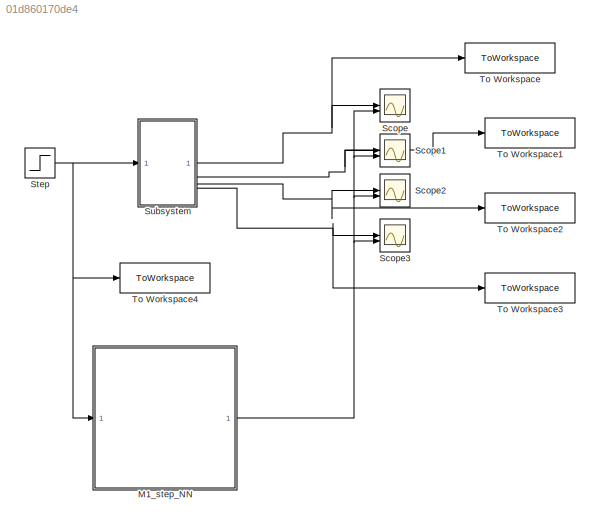
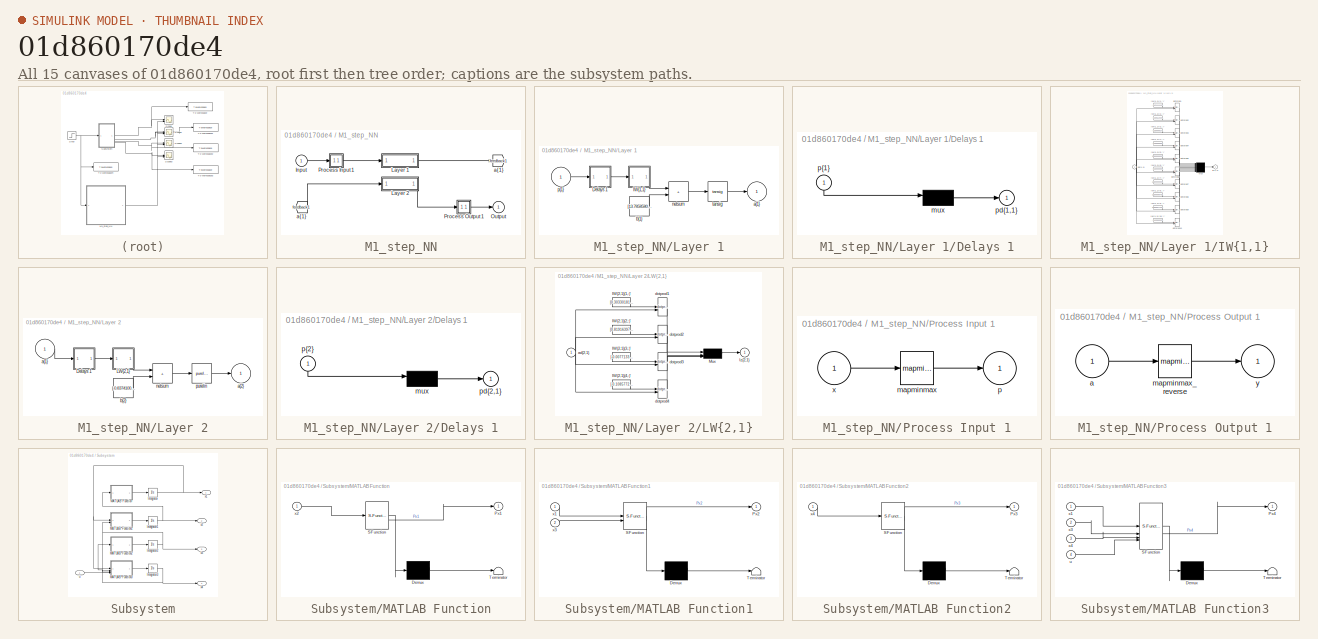
[diagram: thumbnail index - all 15 canvases of the model, root first then tree order]
MODEL slx_01d860170de4
KIND model
CONFIG AbsTol = auto
CONFIG EnableMultiTasking = off
CONFIG FixedStep = auto
CONFIG MaxStep = auto
CONFIG MinStep = auto
CONFIG RelTol = 1e-3
CONFIG SampleTimeConstraint = Unconstrained
CONFIG SolverName = VariableStepAuto
CONFIG StartTime = 0.0
CONFIG StopTime = 10.0
BLOCK [SubSystem] M1_step_NN
BLOCK [From] M1_step_NN/ a{1} 
  GotoTag = feedback1
BLOCK [Inport] M1_step_NN/Input
  PortDimensions = 1
BLOCK [SubSystem] M1_step_NN/Layer 1
BLOCK [SubSystem] M1_step_NN/Layer 1/Delays 1
BLOCK [Mux] M1_step_NN/Layer 1/Delays 1/mux
  Inputs = 1
BLOCK [Outport] M1_step_NN/Layer 1/Delays 1/pd{1,1}
BLOCK [Inport] M1_step_NN/Layer 1/Delays 1/p{1}
  NameLocation = left
  PortDimensions = 1
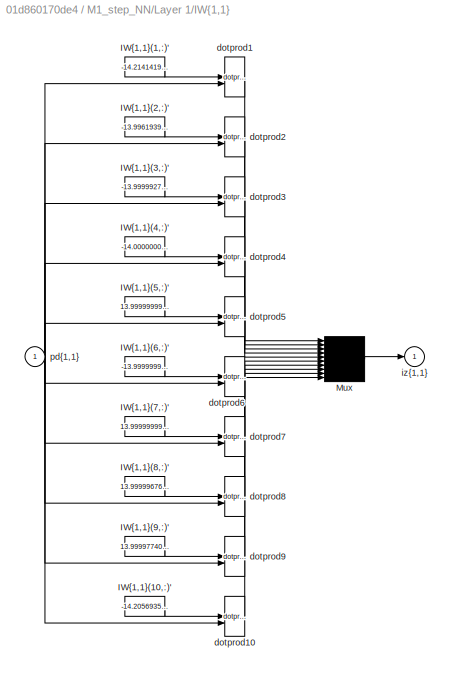
BLOCK [SubSystem] M1_step_NN/Layer 1/IW{1,1}
BLOCK [Constant] M1_step_NN/Layer 1/IW{1,1}/IW{1,1}(1,:)'
  Value = -14.21414191420696937484535737894475460052490234375
BLOCK [Constant] M1_step_NN/Layer 1/IW{1,1}/IW{1,1}(10,:)'
  Value = -14.2056935620228959038513494306243956089019775390625
BLOCK [Constant] M1_step_NN/Layer 1/IW{1,1}/IW{1,1}(2,:)'
  Value = -13.9961939558479055989437256357632577419281005859375
BLOCK [Constant] M1_step_NN/Layer 1/IW{1,1}/IW{1,1}(3,:)'
  Value = -13.9999927439953868457678254344500601291656494140625
BLOCK [Constant] M1_step_NN/Layer 1/IW{1,1}/IW{1,1}(4,:)'
  Value = -14.000000001546734296198337688110768795013427734375
BLOCK [Constant] M1_step_NN/Layer 1/IW{1,1}/IW{1,1}(5,:)'
  Value = 13.99999999997024957565372460521757602691650390625
BLOCK [Constant] M1_step_NN/Layer 1/IW{1,1}/IW{1,1}(6,:)'
  Value = -13.99999999998562572045557317323982715606689453125
BLOCK [Constant] M1_step_NN/Layer 1/IW{1,1}/IW{1,1}(7,:)'
  Value = 13.9999999911144303865739857428707182407379150390625
BLOCK [Constant] M1_step_NN/Layer 1/IW{1,1}/IW{1,1}(8,:)'
  Value = 13.999996769002695629069421556778252124786376953125
BLOCK [Constant] M1_step_NN/Layer 1/IW{1,1}/IW{1,1}(9,:)'
  Value = 13.9999774026981587127238526591099798679351806640625
BLOCK [Mux] M1_step_NN/Layer 1/IW{1,1}/Mux
  Inputs = 10
BLOCK [Reference] M1_step_NN/Layer 1/IW{1,1}/dotprod1  REF=neural/Weight Functions/dotprod
  SourceBlock = neural/Weight Functions/dotprod
  SourceType = DOTPROD
BLOCK [Reference] M1_step_NN/Layer 1/IW{1,1}/dotprod10  REF=neural/Weight Functions/dotprod
  SourceBlock = neural/Weight Functions/dotprod
  SourceType = DOTPROD
BLOCK [Reference] M1_step_NN/Layer 1/IW{1,1}/dotprod2  REF=neural/Weight Functions/dotprod
  SourceBlock = neural/Weight Functions/dotprod
  SourceType = DOTPROD
BLOCK [Reference] M1_step_NN/Layer 1/IW{1,1}/dotprod3  REF=neural/Weight Functions/dotprod
  SourceBlock = neural/Weight Functions/dotprod
  SourceType = DOTPROD
BLOCK [Reference] M1_step_NN/Layer 1/IW{1,1}/dotprod4  REF=neural/Weight Functions/dotprod
  SourceBlock = neural/Weight Functions/dotprod
  SourceType = DOTPROD
BLOCK [Reference] M1_step_NN/Layer 1/IW{1,1}/dotprod5  REF=neural/Weight Functions/dotprod
  SourceBlock = neural/Weight Functions/dotprod
  SourceType = DOTPROD
BLOCK [Reference] M1_step_NN/Layer 1/IW{1,1}/dotprod6  REF=neural/Weight Functions/dotprod
  SourceBlock = neural/Weight Functions/dotprod
  SourceType = DOTPROD
BLOCK [Reference] M1_step_NN/Layer 1/IW{1,1}/dotprod7  REF=neural/Weight Functions/dotprod
  SourceBlock = neural/Weight Functions/dotprod
  SourceType = DOTPROD
BLOCK [Reference] M1_step_NN/Layer 1/IW{1,1}/dotprod8  REF=neural/Weight Functions/dotprod
  SourceBlock = neural/Weight Functions/dotprod
  SourceType = DOTPROD
BLOCK [Reference] M1_step_NN/Layer 1/IW{1,1}/dotprod9  REF=neural/Weight Functions/dotprod
  SourceBlock = neural/Weight Functions/dotprod
  SourceType = DOTPROD
BLOCK [Outport] M1_step_NN/Layer 1/IW{1,1}/iz{1,1}
BLOCK [Inport] M1_step_NN/Layer 1/IW{1,1}/pd{1,1}
  PortDimensions = 1
BLOCK [Outport] M1_step_NN/Layer 1/a{1}
  InitialOutput = [0;0;0;0;0;0;0;0;0;0]
BLOCK [Constant] M1_step_NN/Layer 1/b{1}
  Value = [13.7858580857930395069388396223075687885284423828125;10.892694933040981908334288164041936397552490234375;7.77778503378239083332346126553602516651153564453125;4.66666666511993089017096281168051064014434814453125;-1.5555555555853957105938434324343688786029815673828125;-1.55555555556997671118324433336965739727020263671875;4.6666666755522356879737344570457935333251953125;7.777781008775081161843445443...<+128ch>
BLOCK [Sum] M1_step_NN/Layer 1/netsum
  IconShape = rectangular
  InputSameDT = on
  Inputs = 2
  OutDataTypeStr = Inherit: Same as first input
  SaturateOnIntegerOverflow = on
BLOCK [Inport] M1_step_NN/Layer 1/p{1}
  PortDimensions = 1
BLOCK [Reference] M1_step_NN/Layer 1/tansig  REF=neural/Transfer Functions/tansig
  SourceBlock = neural/Transfer Functions/tansig
  SourceType = TANSIG
BLOCK [SubSystem] M1_step_NN/Layer 2
BLOCK [SubSystem] M1_step_NN/Layer 2/Delays 1
BLOCK [Mux] M1_step_NN/Layer 2/Delays 1/mux
  Inputs = 1
BLOCK [Outport] M1_step_NN/Layer 2/Delays 1/pd{2,1}
BLOCK [Inport] M1_step_NN/Layer 2/Delays 1/p{2}
  NameLocation = left
  PortDimensions = 10
BLOCK [SubSystem] M1_step_NN/Layer 2/LW{2,1}
BLOCK [Constant] M1_step_NN/Layer 2/LW{2,1}/IW{2,1}(1,:)'
  Value = [0.30330181915573317663614716366282664239406585693359375;0.96065110160235700487163512661936692893505096435546875;-0.26113735930578696464721133452258072793483734130859375;-0.72024607665349671403731690588756464421749114990234375;0.221778972204675517421179620214388705790042877197265625;0.06456288770342592797657488290496985428035259246826171875;0.6846244054302503823095094048767350614070892333984375;-0...<+168ch>
BLOCK [Constant] M1_step_NN/Layer 2/LW{2,1}/IW{2,1}(2,:)'
  Value = [0.819163970289384035794455485302023589611053466796875;-0.8581476975587942757073278698953799903392791748046875;-0.31259618591607696291845286395982839167118072509765625;-0.266659433580335669677907617369783110916614532470703125;0.0971611530046038451846612815643311478197574615478515625;-0.86674952398806082154436580822221003472805023193359375;-0.5769656482913438910742343068704940378665924072265625;-0....<+165ch>
BLOCK [Constant] M1_step_NN/Layer 2/LW{2,1}/IW{2,1}(3,:)'
  Value = [-0.007713334971200085272979851680474894237704575061798095703125;-0.37253438847314190862647365065640769898891448974609375;-0.7829016744234318370132541531347669661045074462890625;0.77023392824568126524553690614993683993816375732421875;0.42123370864381026734690749435685575008392333984375;0.62955879028910366468352322044665925204753875732421875;0.1877083585687728817248398627270944416522979736328125;-0...<+166ch>
BLOCK [Constant] M1_step_NN/Layer 2/LW{2,1}/IW{2,1}(4,:)'
  Value = [-0.1085772726797044895885591131445835344493389129638671875;0.8280699763514334232894498200039379298686981201171875;0.7116699417740399713494525713031180202960968017578125;-0.12056768891315612635128928786798496730625629425048828125;-0.82147006238449737924867122274008579552173614501953125;-0.4398928391688006200865856953896582126617431640625;0.99521901591091133099098442471586167812347412109375;0.48282...<+159ch>
BLOCK [Mux] M1_step_NN/Layer 2/LW{2,1}/Mux
BLOCK [Inport] M1_step_NN/Layer 2/LW{2,1}/ad{2,1}
  PortDimensions = 10
BLOCK [Reference] M1_step_NN/Layer 2/LW{2,1}/dotprod1  REF=neural/Weight Functions/dotprod
  SourceBlock = neural/Weight Functions/dotprod
  SourceType = DOTPROD
BLOCK [Reference] M1_step_NN/Layer 2/LW{2,1}/dotprod2  REF=neural/Weight Functions/dotprod
  SourceBlock = neural/Weight Functions/dotprod
  SourceType = DOTPROD
BLOCK [Reference] M1_step_NN/Layer 2/LW{2,1}/dotprod3  REF=neural/Weight Functions/dotprod
  SourceBlock = neural/Weight Functions/dotprod
  SourceType = DOTPROD
BLOCK [Reference] M1_step_NN/Layer 2/LW{2,1}/dotprod4  REF=neural/Weight Functions/dotprod
  SourceBlock = neural/Weight Functions/dotprod
  SourceType = DOTPROD
BLOCK [Outport] M1_step_NN/Layer 2/LW{2,1}/lz{2,1}
BLOCK [Inport] M1_step_NN/Layer 2/a{1} 
  PortDimensions = 10
BLOCK [Outport] M1_step_NN/Layer 2/a{2}
  InitialOutput = [0;0;0;0]
BLOCK [Constant] M1_step_NN/Layer 2/b{2}
  Value = [-0.83741003081472442648447440660675056278705596923828125;-0.50767235521419451504954167830874212086200714111328125;-0.6867347856186711840820180441369302570819854736328125;0.05075557787429361977782349413246265612542629241943359375]
BLOCK [Sum] M1_step_NN/Layer 2/netsum
  IconShape = rectangular
  InputSameDT = on
  Inputs = 2
  OutDataTypeStr = Inherit: Same as first input
  SaturateOnIntegerOverflow = on
BLOCK [Reference] M1_step_NN/Layer 2/purelin  REF=neural/Transfer Functions/purelin
  SourceBlock = neural/Transfer Functions/purelin
  SourceType = PURELIN
BLOCK [Outport] M1_step_NN/Output
  InitialOutput = [0;0;0;0]
BLOCK [SubSystem] M1_step_NN/Process Input 1
BLOCK [Reference] M1_step_NN/Process Input 1/mapminmax  REF=neural/Processing Functions/mapminmax
  SourceBlock = neural/Processing Functions/mapminmax
  SourceType = MAPMINMAX Preprocess
BLOCK [Outport] M1_step_NN/Process Input 1/p
  PortDimensions = 1
BLOCK [Inport] M1_step_NN/Process Input 1/x
  PortDimensions = 1
BLOCK [SubSystem] M1_step_NN/Process Output 1
BLOCK [Inport] M1_step_NN/Process Output 1/a
  PortDimensions = 4
BLOCK [Reference] M1_step_NN/Process Output 1/mapminmax_reverse  REF=neural/Processing Functions/mapminmax_reverse
  SourceBlock = neural/Processing Functions/mapminmax_reverse
  SourceType = MAPMINMAX Reverse Process
BLOCK [Outport] M1_step_NN/Process Output 1/y
  PortDimensions = 4
BLOCK [Goto] M1_step_NN/a{1}
  GotoTag = feedback1
BLOCK [Scope] Scope
  Floating = off
  NumInputPorts = 2
  ScopeSpecificationString = Simulink.scopes.TimeScopeBlockCfg('CurrentConfiguration', extmgr.ConfigurationSet(extmgr.Configuration('Core','General UI',true),extmgr.Configuration('Core','Source UI',true),extmgr.Configuration('Sources','WiredSimulink',true,'DataLoggingVariableName','ScopeData1'),extmgr.Configuration('Visuals','Time Domain',true,'SerializedDisplays',{struct('MinYLimReal','-0.04923','MaxYLimReal','0.44295','YLab...<+1430ch>
BLOCK [Scope] Scope1
  Floating = off
  NumInputPorts = 2
  ScopeSpecificationString = Simulink.scopes.TimeScopeBlockCfg('CurrentConfiguration', extmgr.ConfigurationSet(extmgr.Configuration('Core','General UI',true),extmgr.Configuration('Core','Source UI',true),extmgr.Configuration('Sources','WiredSimulink',true,'DataLoggingVariableName','ScopeData2'),extmgr.Configuration('Visuals','Time Domain',true,'SerializedDisplays',{struct('MinYLimReal','-0.48583','MaxYLimReal','0.51623','YLab...<+1430ch>
BLOCK [Scope] Scope2
  Floating = off
  NumInputPorts = 2
  ScopeSpecificationString = Simulink.scopes.TimeScopeBlockCfg('CurrentConfiguration', extmgr.ConfigurationSet(extmgr.Configuration('Core','General UI',true),extmgr.Configuration('Core','Source UI',true),extmgr.Configuration('Sources','WiredSimulink',true,'DataLoggingVariableName','ScopeData3'),extmgr.Configuration('Visuals','Time Domain',true,'SerializedDisplays',{struct('MinYLimReal','-0.05131','MaxYLimReal','0.46166','YLab...<+1458ch>
BLOCK [Scope] Scope3
  Floating = off
  NumInputPorts = 2
  ScopeSpecificationString = Simulink.scopes.TimeScopeBlockCfg('CurrentConfiguration', extmgr.ConfigurationSet(extmgr.Configuration('Core','General UI',true),extmgr.Configuration('Core','Source UI',true),extmgr.Configuration('Sources','WiredSimulink',true),extmgr.Configuration('Visuals','Time Domain',true,'SerializedDisplays',{struct('MinYLimReal','-0.55035','MaxYLimReal','0.58696','YLabelReal','','MinYLimMag','0.00000','MaxY...<+1423ch>
BLOCK [Step] Step
  SampleTime = 0
BLOCK [SubSystem] Subsystem
BLOCK [Integrator] Subsystem/Integrator
BLOCK [Integrator] Subsystem/Integrator1
BLOCK [Integrator] Subsystem/Integrator2
BLOCK [Integrator] Subsystem/Integrator3
BLOCK [SubSystem] Subsystem/MATLAB Function
  ErrorFcn = Stateflow.Translate.translate
  LibrarySourceBlock = simulink/User-Defined\nFunctions/MATLAB Function
  PermitHierarchicalResolution = ExplicitOnly
  SFBlockType = MATLAB Function
  TreatAsAtomicUnit = on
BLOCK [Demux] Subsystem/MATLAB Function/ Demux 
  Outputs = 1
BLOCK [S-Function] Subsystem/MATLAB Function/ SFunction 
  EnableBusSupport = on
  FunctionName = sf_sfun
  PortCounts = [1 2]
  SFcnIsStateOwnerBlock = off
  SFunctionDeploymentMode = off
  Tag = Stateflow S-Function 2
BLOCK [Terminator] Subsystem/MATLAB Function/ Terminator 
BLOCK [Outport] Subsystem/MATLAB Function/Px1
BLOCK [Inport] Subsystem/MATLAB Function/x2
BLOCK [SubSystem] Subsystem/MATLAB Function1
  ErrorFcn = Stateflow.Translate.translate
  LibrarySourceBlock = simulink/User-Defined\nFunctions/MATLAB Function
  PermitHierarchicalResolution = ExplicitOnly
  SFBlockType = MATLAB Function
  TreatAsAtomicUnit = on
BLOCK [Demux] Subsystem/MATLAB Function1/ Demux 
  Outputs = 1
BLOCK [S-Function] Subsystem/MATLAB Function1/ SFunction 
  EnableBusSupport = on
  FunctionName = sf_sfun
  PortCounts = [2 2]
  SFcnIsStateOwnerBlock = off
  SFunctionDeploymentMode = off
  Tag = Stateflow S-Function 1
BLOCK [Terminator] Subsystem/MATLAB Function1/ Terminator 
BLOCK [Outport] Subsystem/MATLAB Function1/Px2
BLOCK [Inport] Subsystem/MATLAB Function1/x1
BLOCK [Inport] Subsystem/MATLAB Function1/x3
  Port = 2
BLOCK [SubSystem] Subsystem/MATLAB Function2
  ErrorFcn = Stateflow.Translate.translate
  LibrarySourceBlock = simulink/User-Defined\nFunctions/MATLAB Function
  PermitHierarchicalResolution = ExplicitOnly
  SFBlockType = MATLAB Function
  TreatAsAtomicUnit = on
BLOCK [Demux] Subsystem/MATLAB Function2/ Demux 
  Outputs = 1
BLOCK [S-Function] Subsystem/MATLAB Function2/ SFunction 
  EnableBusSupport = on
  FunctionName = sf_sfun
  PortCounts = [1 2]
  SFcnIsStateOwnerBlock = off
  SFunctionDeploymentMode = off
  Tag = Stateflow S-Function 3
BLOCK [Terminator] Subsystem/MATLAB Function2/ Terminator 
BLOCK [Outport] Subsystem/MATLAB Function2/Px3
BLOCK [Inport] Subsystem/MATLAB Function2/x4
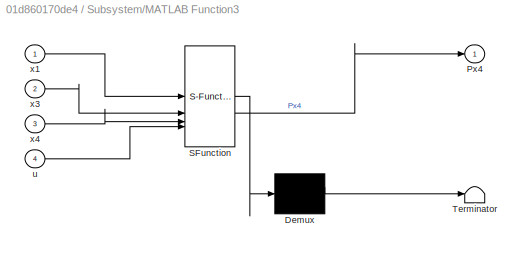
BLOCK [SubSystem] Subsystem/MATLAB Function3
  ErrorFcn = Stateflow.Translate.translate
  LibrarySourceBlock = simulink/User-Defined\nFunctions/MATLAB Function
  PermitHierarchicalResolution = ExplicitOnly
  SFBlockType = MATLAB Function
  TreatAsAtomicUnit = on
BLOCK [Demux] Subsystem/MATLAB Function3/ Demux 
  Outputs = 1
BLOCK [S-Function] Subsystem/MATLAB Function3/ SFunction 
  EnableBusSupport = on
  FunctionName = sf_sfun
  PortCounts = [4 2]
  SFcnIsStateOwnerBlock = off
  SFunctionDeploymentMode = off
  Tag = Stateflow S-Function 4
BLOCK [Terminator] Subsystem/MATLAB Function3/ Terminator 
BLOCK [Outport] Subsystem/MATLAB Function3/Px4
BLOCK [Inport] Subsystem/MATLAB Function3/u
  Port = 4
BLOCK [Inport] Subsystem/MATLAB Function3/x1
BLOCK [Inport] Subsystem/MATLAB Function3/x3
  Port = 2
BLOCK [Inport] Subsystem/MATLAB Function3/x4
  Port = 3
BLOCK [Inport] Subsystem/u
BLOCK [Outport] Subsystem/x1
BLOCK [Outport] Subsystem/x2
  Port = 2
BLOCK [Outport] Subsystem/x3
  Port = 3
BLOCK [Outport] Subsystem/x4
  Port = 4
BLOCK [ToWorkspace] To Workspace
  FixptAsFi = on
  MaxDataPoints = inf
  SampleTime = -1
  SaveFormat = Structure With Time
  VariableName = x1
BLOCK [ToWorkspace] To Workspace1
  FixptAsFi = on
  MaxDataPoints = inf
  SampleTime = -1
  SaveFormat = Structure With Time
  VariableName = x2
BLOCK [ToWorkspace] To Workspace2
  FixptAsFi = on
  MaxDataPoints = inf
  SampleTime = -1
  SaveFormat = Structure With Time
  VariableName = x3
BLOCK [ToWorkspace] To Workspace3
  FixptAsFi = on
  MaxDataPoints = inf
  SampleTime = -1
  SaveFormat = Structure With Time
  VariableName = x4
BLOCK [ToWorkspace] To Workspace4
  FixptAsFi = on
  MaxDataPoints = inf
  SampleTime = -1
  SaveFormat = Structure With Time
  VariableName = u
LINE M1_step_NN/ a{1} :1 -> M1_step_NN/Layer 2:1
LINE M1_step_NN/Input:1 -> M1_step_NN/Process Input 1:1
LINE M1_step_NN/Layer 1/Delays 1/mux:1 -> M1_step_NN/Layer 1/Delays 1/pd{1,1}:1
LINE M1_step_NN/Layer 1/Delays 1/p{1}:1 -> M1_step_NN/Layer 1/Delays 1/mux:1
LINE M1_step_NN/Layer 1/Delays 1:1 -> M1_step_NN/Layer 1/IW{1,1}:1
LINE M1_step_NN/Layer 1/IW{1,1}/IW{1,1}(1,:)':1 -> M1_step_NN/Layer 1/IW{1,1}/dotprod1:1
LINE M1_step_NN/Layer 1/IW{1,1}/IW{1,1}(10,:)':1 -> M1_step_NN/Layer 1/IW{1,1}/dotprod10:1
LINE M1_step_NN/Layer 1/IW{1,1}/IW{1,1}(2,:)':1 -> M1_step_NN/Layer 1/IW{1,1}/dotprod2:1
LINE M1_step_NN/Layer 1/IW{1,1}/IW{1,1}(3,:)':1 -> M1_step_NN/Layer 1/IW{1,1}/dotprod3:1
LINE M1_step_NN/Layer 1/IW{1,1}/IW{1,1}(4,:)':1 -> M1_step_NN/Layer 1/IW{1,1}/dotprod4:1
LINE M1_step_NN/Layer 1/IW{1,1}/IW{1,1}(5,:)':1 -> M1_step_NN/Layer 1/IW{1,1}/dotprod5:1
LINE M1_step_NN/Layer 1/IW{1,1}/IW{1,1}(6,:)':1 -> M1_step_NN/Layer 1/IW{1,1}/dotprod6:1
LINE M1_step_NN/Layer 1/IW{1,1}/IW{1,1}(7,:)':1 -> M1_step_NN/Layer 1/IW{1,1}/dotprod7:1
LINE M1_step_NN/Layer 1/IW{1,1}/IW{1,1}(8,:)':1 -> M1_step_NN/Layer 1/IW{1,1}/dotprod8:1
LINE M1_step_NN/Layer 1/IW{1,1}/IW{1,1}(9,:)':1 -> M1_step_NN/Layer 1/IW{1,1}/dotprod9:1
LINE M1_step_NN/Layer 1/IW{1,1}/Mux:1 -> M1_step_NN/Layer 1/IW{1,1}/iz{1,1}:1
LINE M1_step_NN/Layer 1/IW{1,1}/dotprod10:1 -> M1_step_NN/Layer 1/IW{1,1}/Mux:10
LINE M1_step_NN/Layer 1/IW{1,1}/dotprod1:1 -> M1_step_NN/Layer 1/IW{1,1}/Mux:1
LINE M1_step_NN/Layer 1/IW{1,1}/dotprod2:1 -> M1_step_NN/Layer 1/IW{1,1}/Mux:2
LINE M1_step_NN/Layer 1/IW{1,1}/dotprod3:1 -> M1_step_NN/Layer 1/IW{1,1}/Mux:3
LINE M1_step_NN/Layer 1/IW{1,1}/dotprod4:1 -> M1_step_NN/Layer 1/IW{1,1}/Mux:4
LINE M1_step_NN/Layer 1/IW{1,1}/dotprod5:1 -> M1_step_NN/Layer 1/IW{1,1}/Mux:5
LINE M1_step_NN/Layer 1/IW{1,1}/dotprod6:1 -> M1_step_NN/Layer 1/IW{1,1}/Mux:6
LINE M1_step_NN/Layer 1/IW{1,1}/dotprod7:1 -> M1_step_NN/Layer 1/IW{1,1}/Mux:7
LINE M1_step_NN/Layer 1/IW{1,1}/dotprod8:1 -> M1_step_NN/Layer 1/IW{1,1}/Mux:8
LINE M1_step_NN/Layer 1/IW{1,1}/dotprod9:1 -> M1_step_NN/Layer 1/IW{1,1}/Mux:9
NET M1_step_NN/Layer 1/IW{1,1}/pd{1,1}:1 -> M1_step_NN/Layer 1/IW{1,1}/dotprod10:2, M1_step_NN/Layer 1/IW{1,1}/dotprod1:2, M1_step_NN/Layer 1/IW{1,1}/dotprod2:2, M1_step_NN/Layer 1/IW{1,1}/dotprod3:2, M1_step_NN/Layer 1/IW{1,1}/dotprod4:2, M1_step_NN/Layer 1/IW{1,1}/dotprod5:2, M1_step_NN/Layer 1/IW{1,1}/dotprod6:2, M1_step_NN/Layer 1/IW{1,1}/dotprod7:2, M1_step_NN/Layer 1/IW{1,1}/dotprod8:2, M1_step_NN/Layer 1/IW{1,1}/dotprod9:2
LINE M1_step_NN/Layer 1/IW{1,1}:1 -> M1_step_NN/Layer 1/netsum:1
LINE M1_step_NN/Layer 1/b{1}:1 -> M1_step_NN/Layer 1/netsum:2
LINE M1_step_NN/Layer 1/netsum:1 -> M1_step_NN/Layer 1/tansig:1
LINE M1_step_NN/Layer 1/p{1}:1 -> M1_step_NN/Layer 1/Delays 1:1
LINE M1_step_NN/Layer 1/tansig:1 -> M1_step_NN/Layer 1/a{1}:1
LINE M1_step_NN/Layer 1:1 -> M1_step_NN/a{1}:1
LINE M1_step_NN/Layer 2/Delays 1/mux:1 -> M1_step_NN/Layer 2/Delays 1/pd{2,1}:1
LINE M1_step_NN/Layer 2/Delays 1/p{2}:1 -> M1_step_NN/Layer 2/Delays 1/mux:1
LINE M1_step_NN/Layer 2/Delays 1:1 -> M1_step_NN/Layer 2/LW{2,1}:1
LINE M1_step_NN/Layer 2/LW{2,1}/IW{2,1}(1,:)':1 -> M1_step_NN/Layer 2/LW{2,1}/dotprod1:1
LINE M1_step_NN/Layer 2/LW{2,1}/IW{2,1}(2,:)':1 -> M1_step_NN/Layer 2/LW{2,1}/dotprod2:1
LINE M1_step_NN/Layer 2/LW{2,1}/IW{2,1}(3,:)':1 -> M1_step_NN/Layer 2/LW{2,1}/dotprod3:1
LINE M1_step_NN/Layer 2/LW{2,1}/IW{2,1}(4,:)':1 -> M1_step_NN/Layer 2/LW{2,1}/dotprod4:1
LINE M1_step_NN/Layer 2/LW{2,1}/Mux:1 -> M1_step_NN/Layer 2/LW{2,1}/lz{2,1}:1
NET M1_step_NN/Layer 2/LW{2,1}/ad{2,1}:1 -> M1_step_NN/Layer 2/LW{2,1}/dotprod1:2, M1_step_NN/Layer 2/LW{2,1}/dotprod2:2, M1_step_NN/Layer 2/LW{2,1}/dotprod3:2, M1_step_NN/Layer 2/LW{2,1}/dotprod4:2
LINE M1_step_NN/Layer 2/LW{2,1}/dotprod1:1 -> M1_step_NN/Layer 2/LW{2,1}/Mux:1
LINE M1_step_NN/Layer 2/LW{2,1}/dotprod2:1 -> M1_step_NN/Layer 2/LW{2,1}/Mux:2
LINE M1_step_NN/Layer 2/LW{2,1}/dotprod3:1 -> M1_step_NN/Layer 2/LW{2,1}/Mux:3
LINE M1_step_NN/Layer 2/LW{2,1}/dotprod4:1 -> M1_step_NN/Layer 2/LW{2,1}/Mux:4
LINE M1_step_NN/Layer 2/LW{2,1}:1 -> M1_step_NN/Layer 2/netsum:1
LINE M1_step_NN/Layer 2/a{1} :1 -> M1_step_NN/Layer 2/Delays 1:1
LINE M1_step_NN/Layer 2/b{2}:1 -> M1_step_NN/Layer 2/netsum:2
LINE M1_step_NN/Layer 2/netsum:1 -> M1_step_NN/Layer 2/purelin:1
LINE M1_step_NN/Layer 2/purelin:1 -> M1_step_NN/Layer 2/a{2}:1
LINE M1_step_NN/Layer 2:1 -> M1_step_NN/Process Output 1:1
LINE M1_step_NN/Process Input 1/mapminmax:1 -> M1_step_NN/Process Input 1/p:1
LINE M1_step_NN/Process Input 1/x:1 -> M1_step_NN/Process Input 1/mapminmax:1
LINE M1_step_NN/Process Input 1:1 -> M1_step_NN/Layer 1:1
LINE M1_step_NN/Process Output 1/a:1 -> M1_step_NN/Process Output 1/mapminmax_reverse:1
LINE M1_step_NN/Process Output 1/mapminmax_reverse:1 -> M1_step_NN/Process Output 1/y:1
LINE M1_step_NN/Process Output 1:1 -> M1_step_NN/Output:1
NET M1_step_NN:1 -> Scope1:2, Scope2:2, Scope3:2, Scope:2
NET Step:1 -> M1_step_NN:1, Subsystem:1, To Workspace4:1
NET Subsystem/Integrator1:1 -> Subsystem/MATLAB Function:1, Subsystem/x2:1
NET Subsystem/Integrator2:1 -> Subsystem/MATLAB Function1:2, Subsystem/MATLAB Function3:2, Subsystem/x3:1
NET Subsystem/Integrator3:1 -> Subsystem/MATLAB Function2:1, Subsystem/MATLAB Function3:3, Subsystem/x4:1
NET Subsystem/Integrator:1 -> Subsystem/MATLAB Function1:1, Subsystem/MATLAB Function3:1, Subsystem/x1:1
LINE Subsystem/MATLAB Function1:1 -> Subsystem/Integrator1:1
LINE Subsystem/MATLAB Function2:1 -> Subsystem/Integrator2:1
LINE Subsystem/MATLAB Function3:1 -> Subsystem/Integrator3:1
LINE Subsystem/MATLAB Function:1 -> Subsystem/Integrator:1
LINE Subsystem/u:1 -> Subsystem/MATLAB Function3:4
NET Subsystem:1 -> Scope:1, To Workspace:1
NET Subsystem:2 -> Scope1:1, To Workspace1:1
NET Subsystem:3 -> Scope2:1, To Workspace2:1
NET Subsystem:4 -> Scope3:1, To Workspace3:1
note: NET lines group one-source signal fan-out (src -> all destinations, sorted); 1:1 wires keep LINE
CHART Subsystem/MATLAB Function1 states=1 transitions=1
  STATE_LABEL 'eML_blk_kernel()'
  STATE_LABEL 'SCRIPT:\nfunction Px2 = fcn(x1,x3)\nmgl = 5;\nj1 = 1;\nke = 100;\n\nPx2 = -((mgl)/j1)*sin(x1)-(ke/j1)*(x1-x3);\n'
CHART Subsystem/MATLAB Function states=1 transitions=1
  STATE_LABEL 'eML_blk_kernel()'
  STATE_LABEL 'SCRIPT:\nfunction Px1 = fcn(x2)\n\nPx1 = x2;\n'
CHART Subsystem/MATLAB Function2 states=1 transitions=1
  STATE_LABEL 'eML_blk_kernel()'
  STATE_LABEL 'SCRIPT:\nfunction Px3 = fcn(x4)\n\n\nPx3 = x4;\n'
CHART Subsystem/MATLAB Function3 states=1 transitions=1
  STATE_LABEL 'eML_blk_kernel()'
  STATE_LABEL 'SCRIPT:\nfunction Px4 = fcn(x1,x3,x4,u)\nmu = 0.1;\njr = 0.3;\nke = 100;\n\nPx4 = (ke/jr)*(x1-x3)-(mu/jr)*x4+(1/jr)*u;\n'
CHART  states=0 transitions=0
CHART  states=0 transitions=0
CHART  states=0 transitions=0
CHART  states=0 transitions=0
